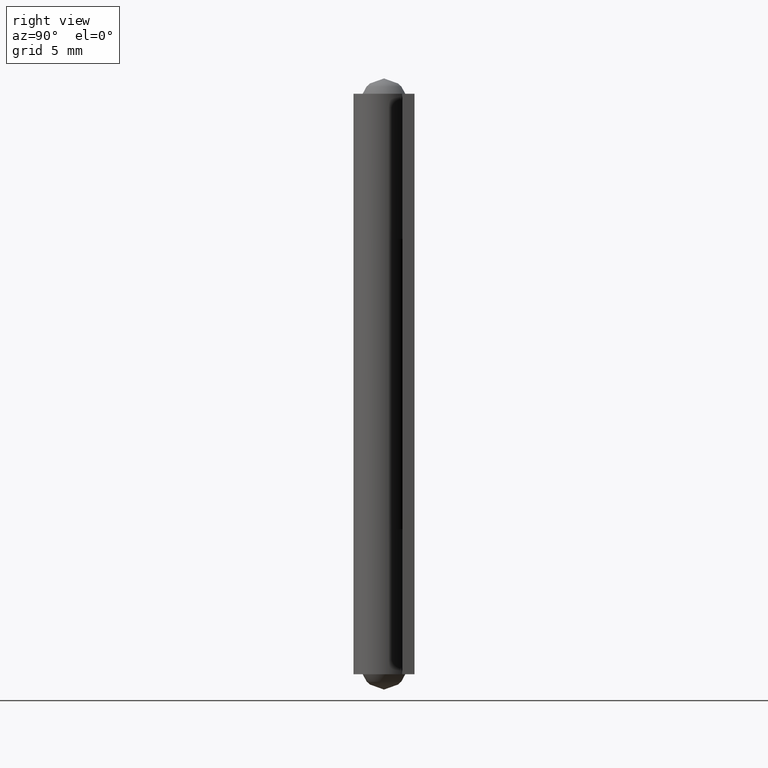
[diagram: clean part render]
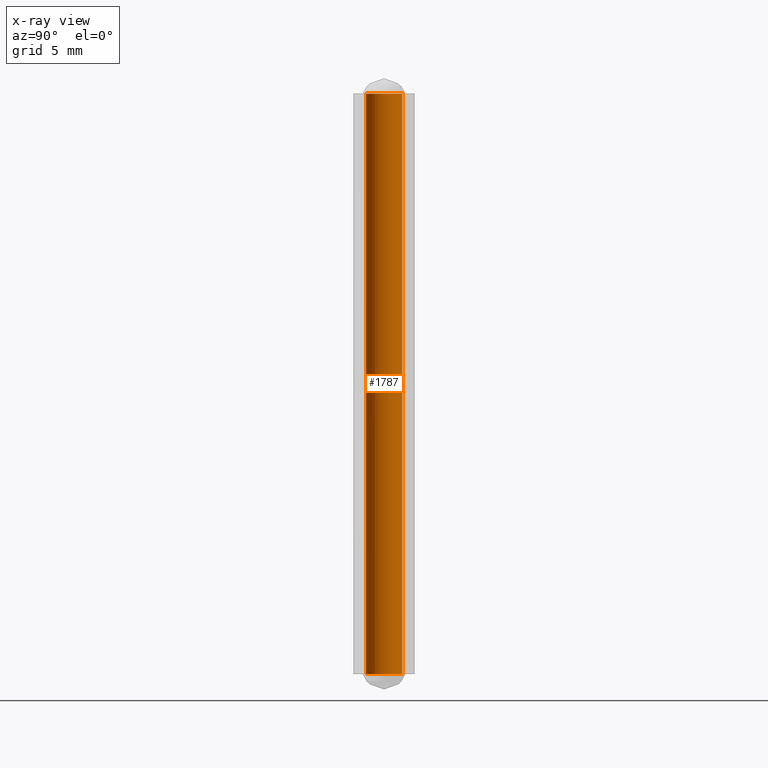
[diagram: x-ray — body ghosted, one internal face saturated and labeled with its STEP entity id]
A machine part, right view, then the same camera in x-ray: the body is ghosted and one INTERNAL B-rep face — a face not visible from any outside direction — is saturated and labeled: STEP entity #1787.
In plain terms, the highlighted face is a freeform B-spline surface patch.
Its self-contained STEP definition (entity closure, byte-faithful):
#1601=CARTESIAN_POINT('',(0.073258247494475,-1.197761758103020,38.0));
#1602=VERTEX_POINT('',#1601);
#1616=CARTESIAN_POINT('',(-0.073258247494475,1.197761758103020,38.0));
#1617=VERTEX_POINT('',#1616);
#1633=CARTESIAN_POINT('',(-1.200000000000000,0.0,38.0));
#1634=VERTEX_POINT('',#1633);
#1635=CARTESIAN_POINT('',(-1.200000000000000,0.0,38.0));
#1636=CARTESIAN_POINT('',(-1.200000000000000,1.128847280237123,37.999999999999986));
#1637=CARTESIAN_POINT('',(-0.073258247494475,1.197761758103021,38.000000000000007));
#1645=(BOUNDED_CURVE()B_SPLINE_CURVE(2,(#1635,#1636,#1637),.UNSPECIFIED.,.F.,.U.)B_SPLINE_CURVE_WITH_KNOTS((3,3),(0.0,0.239332962234384),.UNSPECIFIED.)CURVE()GEOMETRIC_REPRESENTATION_ITEM()RATIONAL_B_SPLINE_CURVE((1.0,0.719603993292051,0.976072041656947))REPRESENTATION_ITEM(''));
#1646=EDGE_CURVE('',#1634,#1617,#1645,.T.);
#1648=CARTESIAN_POINT('',(0.073258247494476,-1.197761758103021,38.000000000000007));
#1649=CARTESIAN_POINT('',(0.036663315984704,-1.200000000000000,38.000000000000014));
#1650=CARTESIAN_POINT('',(0.0,-1.200000000000000,38.0));
#1651=CARTESIAN_POINT('',(-1.200000000000000,-1.200000000000000,37.999999999999993));
#1652=CARTESIAN_POINT('',(-1.200000000000000,0.0,38.0));
#1660=(BOUNDED_CURVE()B_SPLINE_CURVE(2,(#1648,#1649,#1650,#1651,#1652),.UNSPECIFIED.,.F.,.U.)B_SPLINE_CURVE_WITH_KNOTS((3,2,3),(0.739332962234384,0.750000000000000,1.0),.UNSPECIFIED.)CURVE()GEOMETRIC_REPRESENTATION_ITEM()RATIONAL_B_SPLINE_CURVE((0.976072041656947,0.987502787894496,1.0,0.707106781186547,1.0))REPRESENTATION_ITEM(''));
#1661=EDGE_CURVE('',#1602,#1634,#1660,.T.);
#1686=CARTESIAN_POINT('',(0.073258247494475,-1.197761758103020,5.551115E-016));
#1687=VERTEX_POINT('',#1686);
#1688=CARTESIAN_POINT('',(0.073258247494475,-1.197761758103020,38.0));
#1689=CARTESIAN_POINT('',(0.073258247494475,-1.197761758103020,5.551115E-016));
#1690=QUASI_UNIFORM_CURVE('',1,(#1688,#1689),.UNSPECIFIED.,.F.,.U.);
#1691=EDGE_CURVE('',#1602,#1687,#1690,.T.);
#1708=CARTESIAN_POINT('',(-0.073258247494475,1.197761758103020,5.551115E-016));
#1709=VERTEX_POINT('',#1708);
#1725=CARTESIAN_POINT('',(-0.073258247494475,1.197761758103020,38.0));
#1726=CARTESIAN_POINT('',(-0.073258247494475,1.197761758103020,5.551115E-016));
#1727=QUASI_UNIFORM_CURVE('',1,(#1725,#1726),.UNSPECIFIED.,.F.,.U.);
#1728=EDGE_CURVE('',#1617,#1709,#1727,.T.);
#1733=CARTESIAN_POINT('',(0.073258247441828,-1.197761758106240,38.950000000000010));
#1734=CARTESIAN_POINT('',(-1.124503510664412,-1.271020005548068,38.950000000000003));
#1735=CARTESIAN_POINT('',(-1.197761758106240,-0.073258247441828,38.950000000000010));
#1736=CARTESIAN_POINT('',(-1.271020005548068,1.124503510664412,38.950000000000003));
#1737=CARTESIAN_POINT('',(-0.073258247441828,1.197761758106240,38.950000000000010));
#1738=CARTESIAN_POINT('',(0.073258247441828,-1.197761758106240,-0.973749999999995));
#1739=CARTESIAN_POINT('',(-1.124503510664412,-1.271020005548068,-0.973749999999995));
#1740=CARTESIAN_POINT('',(-1.197761758106240,-0.073258247441828,-0.973749999999995));
#1741=CARTESIAN_POINT('',(-1.271020005548068,1.124503510664412,-0.973749999999995));
#1742=CARTESIAN_POINT('',(-0.073258247441828,1.197761758106240,-0.973749999999995));
#1750=(BOUNDED_SURFACE()B_SPLINE_SURFACE(2,1,((#1733,#1738),(#1734,#1739),(#1735,#1740),(#1736,#1741),(#1737,#1742)),.UNSPECIFIED.,.F.,.F.,.U.)B_SPLINE_SURFACE_WITH_KNOTS((3,2,3),(2,2),(0.0,1.570796326794897,3.141592653589793),(0.0,39.923750000000013),.UNSPECIFIED.)GEOMETRIC_REPRESENTATION_ITEM()RATIONAL_B_SPLINE_SURFACE(((1.0,1.0),(0.707106781186548,0.707106781186548),(1.0,1.0),(0.707106781186548,0.707106781186548),(1.0,1.0)))REPRESENTATION_ITEM('')SURFACE());
#1751=ORIENTED_EDGE('',*,*,#1646,.T.);
#1752=ORIENTED_EDGE('',*,*,#1728,.T.);
#1753=CARTESIAN_POINT('',(-1.200000000000000,0.0,0.0));
#1754=VERTEX_POINT('',#1753);
#1755=CARTESIAN_POINT('',(-1.200000000000000,0.0,0.0));
#1756=CARTESIAN_POINT('',(-1.200000000000000,1.128847280237123,0.0));
#1757=CARTESIAN_POINT('',(-0.073258247494475,1.197761758103021,0.0));
#1765=(BOUNDED_CURVE()B_SPLINE_CURVE(2,(#1755,#1756,#1757),.UNSPECIFIED.,.F.,.U.)B_SPLINE_CURVE_WITH_KNOTS((3,3),(0.0,0.239332962234384),.UNSPECIFIED.)CURVE()GEOMETRIC_REPRESENTATION_ITEM()RATIONAL_B_SPLINE_CURVE((1.0,0.719603993292051,0.976072041656947))REPRESENTATION_ITEM(''));
#1766=EDGE_CURVE('',#1754,#1709,#1765,.T.);
#1767=ORIENTED_EDGE('',*,*,#1766,.F.);
#1768=CARTESIAN_POINT('',(0.073258247494476,-1.197761758103021,0.0));
#1769=CARTESIAN_POINT('',(0.036663315984704,-1.200000000000000,0.0));
#1770=CARTESIAN_POINT('',(0.0,-1.200000000000000,0.0));
#1771=CARTESIAN_POINT('',(-1.200000000000000,-1.200000000000000,0.0));
#1772=CARTESIAN_POINT('',(-1.200000000000000,0.0,0.0));
#1780=(BOUNDED_CURVE()B_SPLINE_CURVE(2,(#1768,#1769,#1770,#1771,#1772),.UNSPECIFIED.,.F.,.U.)B_SPLINE_CURVE_WITH_KNOTS((3,2,3),(0.739332962234384,0.750000000000000,1.0),.UNSPECIFIED.)CURVE()GEOMETRIC_REPRESENTATION_ITEM()RATIONAL_B_SPLINE_CURVE((0.976072041656947,0.987502787894496,1.0,0.707106781186547,1.0))REPRESENTATION_ITEM(''));
#1781=EDGE_CURVE('',#1687,#1754,#1780,.T.);
#1782=ORIENTED_EDGE('',*,*,#1781,.F.);
#1783=ORIENTED_EDGE('',*,*,#1691,.F.);
#1784=ORIENTED_EDGE('',*,*,#1661,.T.);
#1785=EDGE_LOOP('',(#1751,#1752,#1767,#1782,#1783,#1784));
#1786=FACE_OUTER_BOUND('',#1785,.T.);
#1787=ADVANCED_FACE('',(#1786),#1750,.T.);